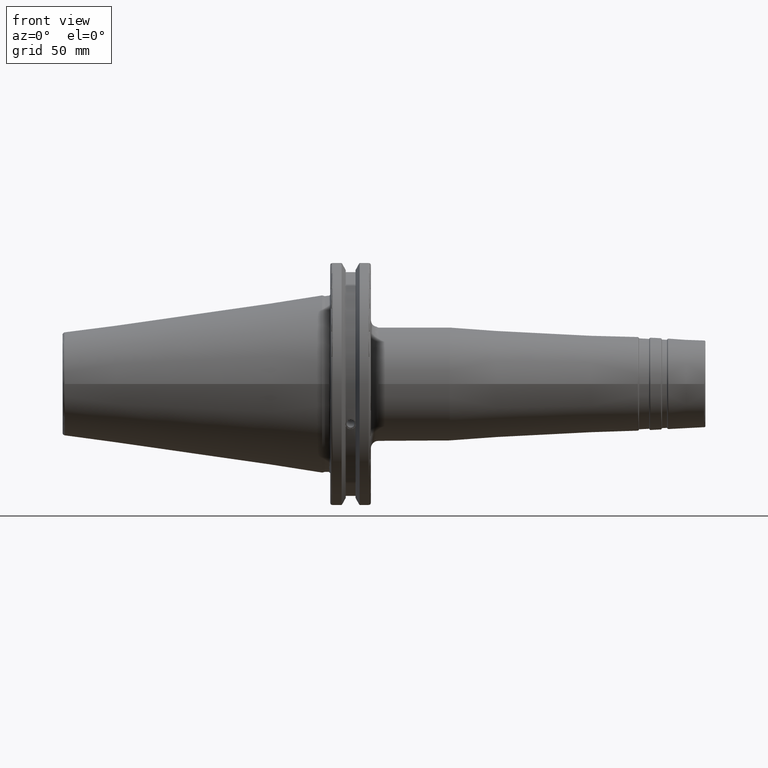
[diagram: clean part render]
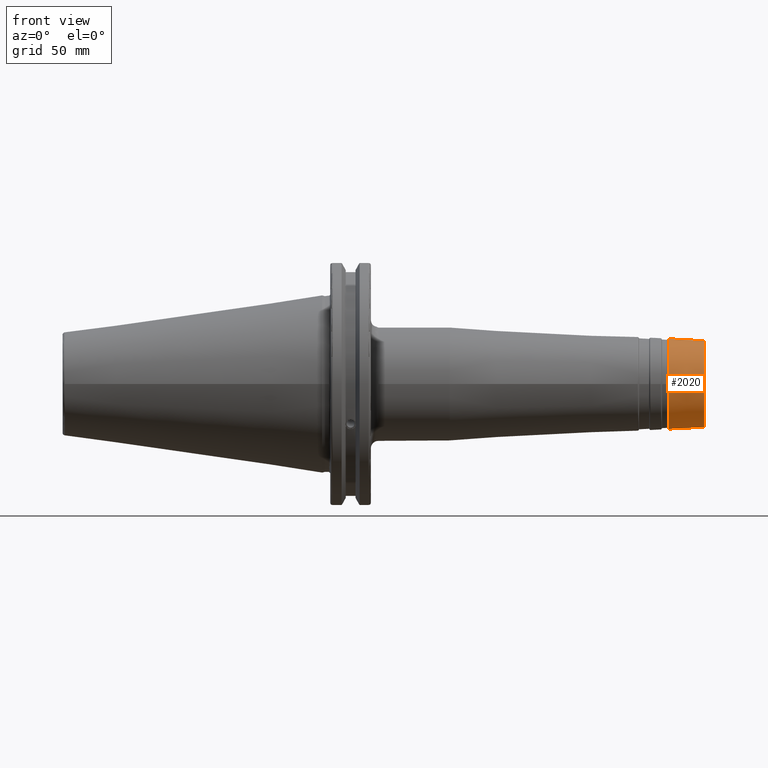
[diagram: same view with one face highlighted and labeled with its STEP entity id]
A machine part, front view. The second image highlights one B-rep face of the part: STEP entity #2020.
In plain terms, the highlighted conical surface has half-angle 3 deg.
Its self-contained STEP definition (entity closure, byte-faithful):
#88=CONICAL_SURFACE('',#2167,17.3848185972057,0.05235987755983);
#175=FACE_OUTER_BOUND('',#282,.T.);
#282=EDGE_LOOP('',(#1392,#1393,#1394,#1395,#1396,#1397,#1398,#1399));
#410=LINE('',#3267,#512);
#512=VECTOR('',#2492,17.3848185972057);
#618=CIRCLE('',#2163,17.0248324840198);
#619=CIRCLE('',#2164,17.0248324840198);
#620=CIRCLE('',#2165,17.0248324840198);
#622=CIRCLE('',#2168,17.7575507230413);
#623=CIRCLE('',#2169,17.7575507230413);
#624=CIRCLE('',#2170,17.7575507230413);
#802=VERTEX_POINT('',#3257);
#803=VERTEX_POINT('',#3259);
#804=VERTEX_POINT('',#3261);
#805=VERTEX_POINT('',#3266);
#806=VERTEX_POINT('',#3268);
#807=VERTEX_POINT('',#3270);
#1043=EDGE_CURVE('',#802,#803,#618,.T.);
#1044=EDGE_CURVE('',#803,#804,#619,.T.);
#1045=EDGE_CURVE('',#804,#802,#620,.T.);
#1047=EDGE_CURVE('',#803,#805,#410,.T.);
#1048=EDGE_CURVE('',#806,#805,#622,.T.);
#1049=EDGE_CURVE('',#807,#806,#623,.T.);
#1050=EDGE_CURVE('',#805,#807,#624,.T.);
#1392=ORIENTED_EDGE('',*,*,#1045,.F.);
#1393=ORIENTED_EDGE('',*,*,#1044,.F.);
#1394=ORIENTED_EDGE('',*,*,#1047,.T.);
#1395=ORIENTED_EDGE('',*,*,#1048,.F.);
#1396=ORIENTED_EDGE('',*,*,#1049,.F.);
#1397=ORIENTED_EDGE('',*,*,#1050,.F.);
#1398=ORIENTED_EDGE('',*,*,#1047,.F.);
#1399=ORIENTED_EDGE('',*,*,#1043,.F.);
#2020=ADVANCED_FACE('',(#175),#88,.T.);
#2163=AXIS2_PLACEMENT_3D('',#3260,#2482,#2483);
#2164=AXIS2_PLACEMENT_3D('',#3262,#2484,#2485);
#2165=AXIS2_PLACEMENT_3D('',#3263,#2486,#2487);
#2167=AXIS2_PLACEMENT_3D('',#3265,#2490,#2491);
#2168=AXIS2_PLACEMENT_3D('',#3269,#2493,#2494);
#2169=AXIS2_PLACEMENT_3D('',#3271,#2495,#2496);
#2170=AXIS2_PLACEMENT_3D('',#3272,#2497,#2498);
#2482=DIRECTION('center_axis',(1.,0.,0.));
#2483=DIRECTION('ref_axis',(0.,-1.,3.06161699786838E-17));
#2484=DIRECTION('center_axis',(1.,0.,0.));
#2485=DIRECTION('ref_axis',(0.,-1.,3.06161699786838E-17));
#2486=DIRECTION('center_axis',(1.,0.,0.));
#2487=DIRECTION('ref_axis',(0.,-1.,3.06161699786838E-17));
#2490=DIRECTION('center_axis',(-1.,0.,0.));
#2491=DIRECTION('ref_axis',(0.,1.,0.));
#2492=DIRECTION('',(-0.998629534754574,-0.052335956242944,-6.40930612932372E-18));
#2493=DIRECTION('center_axis',(-1.,0.,0.));
#2494=DIRECTION('ref_axis',(0.,-1.,3.06161699786838E-17));
#2495=DIRECTION('center_axis',(-1.,0.,0.));
#2496=DIRECTION('ref_axis',(0.,-1.,3.06161699786838E-17));
#2497=DIRECTION('center_axis',(-1.,0.,0.));
#2498=DIRECTION('ref_axis',(0.,-1.,3.06161699786838E-17));
#3257=CARTESIAN_POINT('',(149.526167978121,-2.08494066075748E-15,17.0248324840198));
#3259=CARTESIAN_POINT('',(149.526167978121,-17.0248324840198,-2.08494066075748E-15));
#3260=CARTESIAN_POINT('Origin',(149.526167978121,0.,-2.60617582594685E-15));
#3261=CARTESIAN_POINT('',(149.526167978121,17.0248324840198,-1.04247033037874E-15));
#3262=CARTESIAN_POINT('Origin',(149.526167978121,0.,-2.60617582594685E-15));
#3263=CARTESIAN_POINT('Origin',(149.526167978121,0.,-2.60617582594685E-15));
#3265=CARTESIAN_POINT('Origin',(142.657223746739,0.,0.));
#3266=CARTESIAN_POINT('',(135.545071105762,-17.7575507230413,-2.17467276536693E-15));
#3267=CARTESIAN_POINT('',(142.657223746739,-17.3848185972057,-2.12902624488253E-15));
#3268=CARTESIAN_POINT('',(135.545071105762,17.7575507230413,-5.43668191341733E-15));
#3269=CARTESIAN_POINT('Origin',(135.545071105762,0.,-2.71834095670866E-15));
#3270=CARTESIAN_POINT('',(135.545071105762,-2.17467276536693E-15,17.7575507230413));
#3271=CARTESIAN_POINT('Origin',(135.545071105762,0.,-2.71834095670866E-15));
#3272=CARTESIAN_POINT('Origin',(135.545071105762,0.,-2.71834095670866E-15));